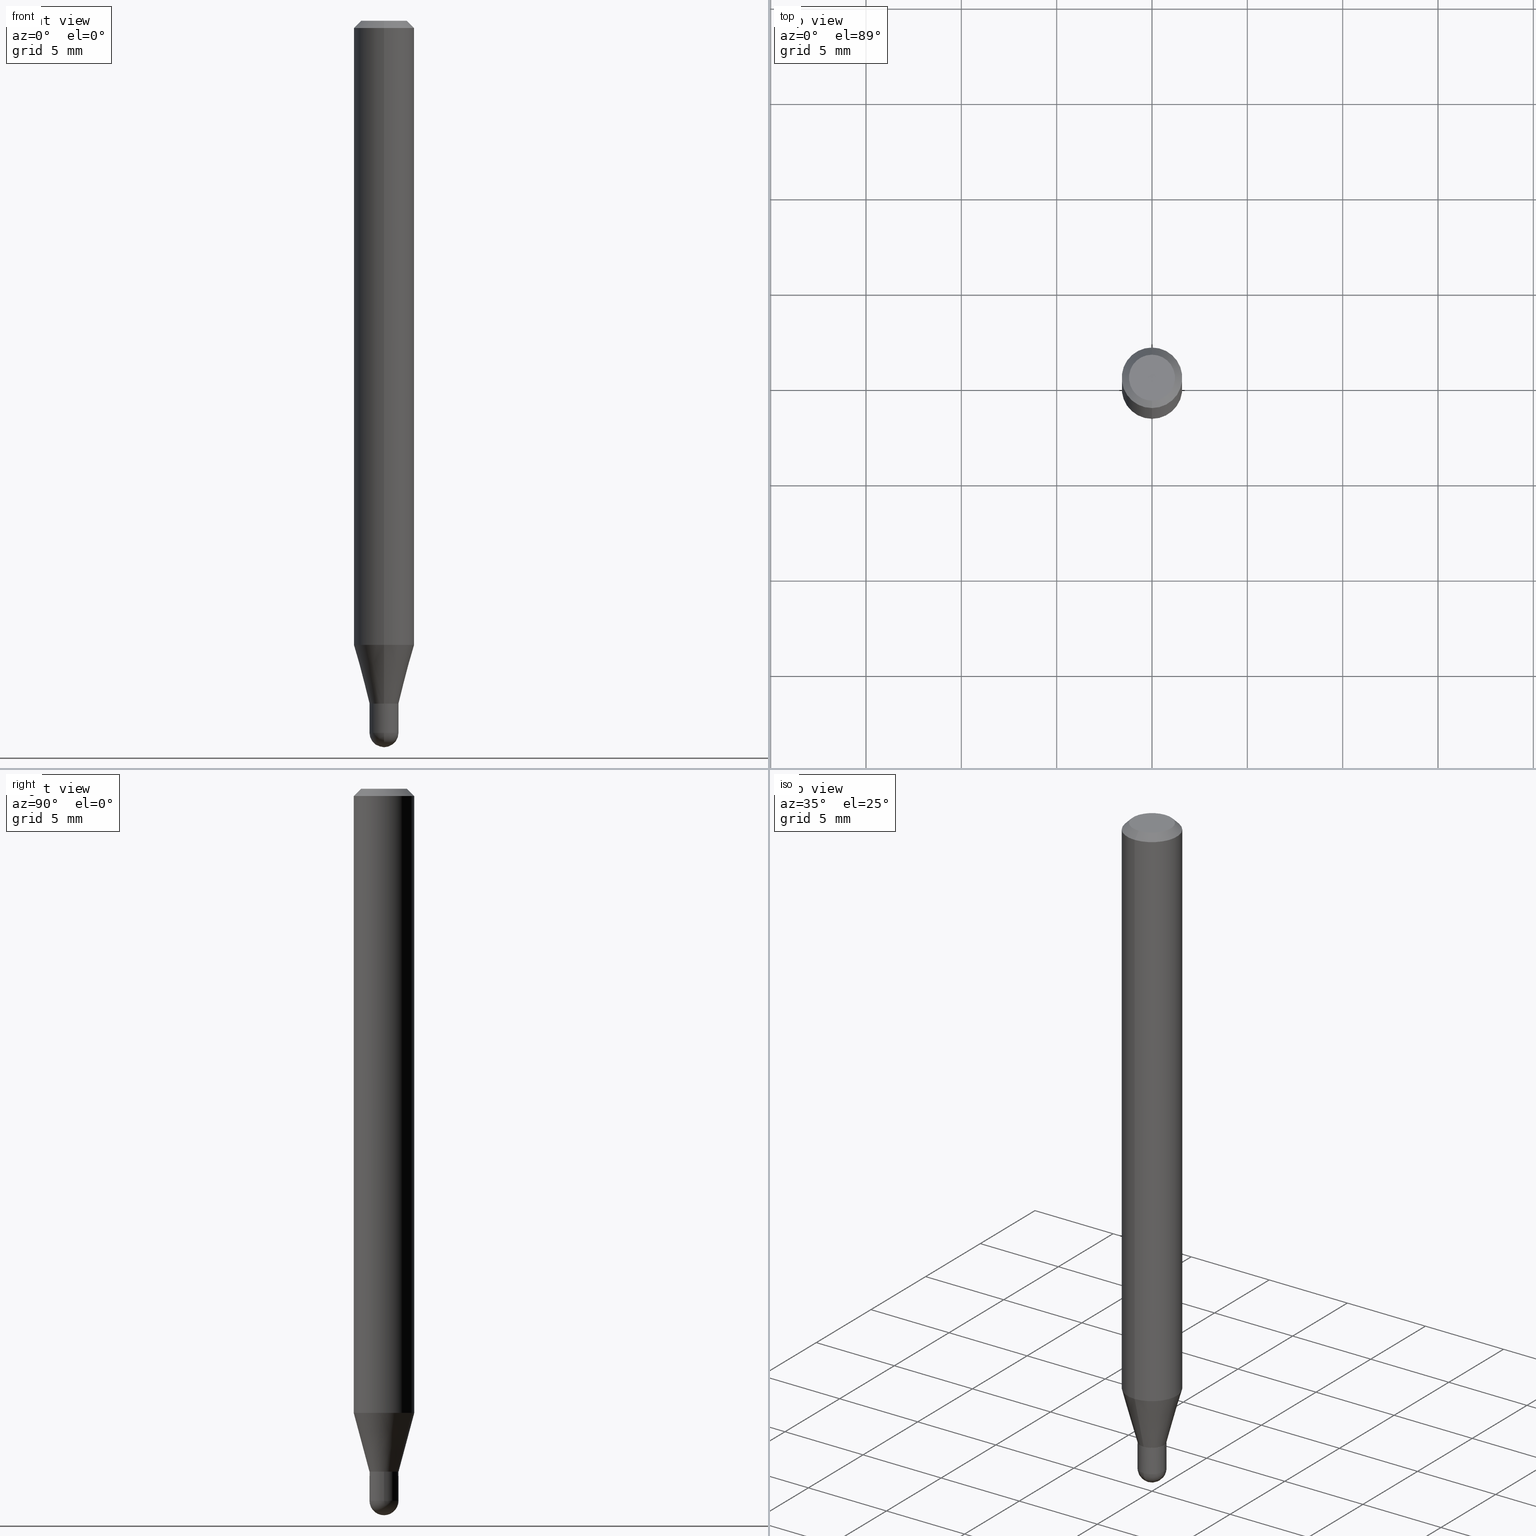
[diagram: canonical four-view strip — front | top / right | iso, engineering-drawing reading convention]
A machine part, canonical four-view strip (front | top / right | iso — engineering-drawing reading convention). The complete STEP part file that produces these views, byte-faithful:
ISO-10303-21;
HEADER;
FILE_DESCRIPTION (( 'STEP AP203' ),
    '1' );
FILE_NAME ('01417.STEP',
    '2024-03-07T20:35:59',
    ( '' ),
    ( '' ),
    'SwSTEP 2.0',
    'SolidWorks 2023',
    '' );
FILE_SCHEMA (( 'CONFIG_CONTROL_DESIGN' ));
ENDSEC;

DATA;
#1 = FACE_OUTER_BOUND ( 'NONE', #461, .T. ) ;
#2 = ORIENTED_EDGE ( 'NONE', *, *, #482, .F. ) ;
#3 = DIRECTION ( 'NONE',  ( -2.445461628991591881E-29, 3.491491616992802242E-15, 1.000000000000000000 ) ) ;
#4 = ORIENTED_EDGE ( 'NONE', *, *, #306, .T. ) ;
#5 = CARTESIAN_POINT ( 'NONE',  ( 4.364351673553919652E-16, 0.06249999999999995143, -0.01500000000000022669 ) ) ;
#6 = VECTOR ( 'NONE', #431, 39.37007874015747433 ) ;
#7 = AXIS2_PLACEMENT_3D ( 'NONE', #111, #181, #231 ) ;
#8 = DIRECTION ( 'NONE',  ( -6.982962677686265922E-15, -1.000000000000000000, 0.000000000000000000 ) ) ;
#9 = COORDINATED_UNIVERSAL_TIME_OFFSET ( 5, 0, .BEHIND. ) ;
#10 = VERTEX_POINT ( 'NONE', #187 ) ;
#11 = VERTEX_POINT ( 'NONE', #384 ) ;
#12 = EDGE_CURVE ( 'NONE', #10, #177, #489, .T. ) ;
#13 = CARTESIAN_POINT ( 'NONE',  ( 3.594839145092151380E-29, -5.132477568099425596E-15, -1.470000000000000417 ) ) ;
#14 = CARTESIAN_POINT ( 'NONE',  ( 0.000000000000000000, 0.000000000000000000, 0.000000000000000000 ) ) ;
#15 = ORIENTED_EDGE ( 'NONE', *, *, #348, .F. ) ;
#16 = APPROVAL ( #100, 'UNSPECIFIED' ) ;
#17 = VECTOR ( 'NONE', #243, 39.37007874015748143 ) ;
#18 = AXIS2_PLACEMENT_3D ( 'NONE', #476, #430, #228 ) ;
#19 = PERSON_AND_ORGANIZATION_ROLE ( 'creator' ) ;
#20 = ORIENTED_EDGE ( 'NONE', *, *, #226, .F. ) ;
#21 = CARTESIAN_POINT ( 'NONE',  ( 0.000000000000000000, 0.000000000000000000, 0.000000000000000000 ) ) ;
#22 = ORIENTED_EDGE ( 'NONE', *, *, #66, .F. ) ;
#23 = DIRECTION ( 'NONE',  ( 2.445461628991591881E-29, -3.491491616992802242E-15, -1.000000000000000000 ) ) ;
#24 = EDGE_CURVE ( 'NONE', #403, #201, #61, .T. ) ;
#25 = ORIENTED_EDGE ( 'NONE', *, *, #40, .F. ) ;
#26 = CYLINDRICAL_SURFACE ( 'NONE', #457, 0.06250000000000000000 ) ;
#27 = CARTESIAN_POINT ( 'NONE',  ( 3.594839145092151380E-29, -5.132477568099425596E-15, -1.470000000000000417 ) ) ;
#28 = ORIENTED_EDGE ( 'NONE', *, *, #226, .T. ) ;
#29 = EDGE_CURVE ( 'NONE', #177, #311, #116, .T. ) ;
#30 = DIRECTION ( 'NONE',  ( -2.445461628991591881E-29, 3.491491616992802242E-15, 1.000000000000000000 ) ) ;
#31 = AXIS2_PLACEMENT_3D ( 'NONE', #506, #308, #269 ) ;
#32 = CIRCLE ( 'NONE', #160, 0.03000000000000000583 ) ;
#33 = ORIENTED_EDGE ( 'NONE', *, *, #60, .T. ) ;
#34 = CARTESIAN_POINT ( 'NONE',  ( 3.448111016721043229E-29, -4.922988687768836490E-15, -1.410000000000000364 ) ) ;
#35 = VECTOR ( 'NONE', #256, 39.37007874015748143 ) ;
#36 = ORIENTED_EDGE ( 'NONE', *, *, #60, .F. ) ;
#37 = LINE ( 'NONE', #233, #456 ) ;
#38 = DIRECTION ( 'NONE',  ( -6.982962677686265922E-15, -1.000000000000000000, 0.000000000000000000 ) ) ;
#39 = ORIENTED_EDGE ( 'NONE', *, *, #92, .F. ) ;
#40 = EDGE_CURVE ( 'NONE', #284, #130, #509, .T. ) ;
#41 = CARTESIAN_POINT ( 'NONE',  ( 3.151486817839062472E-29, -4.499514396423286134E-15, -1.288708348754016741 ) ) ;
#42 = DATE_TIME_ROLE ( 'creation_date' ) ;
#43 = DIRECTION ( 'NONE',  ( -2.445461628991591881E-29, 3.491491616992802242E-15, 1.000000000000000000 ) ) ;
#44 =( NAMED_UNIT ( * ) PLANE_ANGLE_UNIT ( ) SI_UNIT ( $, .RADIAN. ) );
#45 = ORIENTED_EDGE ( 'NONE', *, *, #348, .T. ) ;
#46 = AXIS2_PLACEMENT_3D ( 'NONE', #161, #84, #90 ) ;
#47 = CYLINDRICAL_SURFACE ( 'NONE', #355, 0.03000000000000000583 ) ;
#48 = ORIENTED_EDGE ( 'NONE', *, *, #96, .F. ) ;
#49 = FACE_OUTER_BOUND ( 'NONE', #351, .T. ) ;
#50 = PERSON_AND_ORGANIZATION ( #104, #333 ) ;
#51 = CARTESIAN_POINT ( 'NONE',  ( 3.668192443487390344E-31, -5.237237425489206174E-17, -0.01500000000000000812 ) ) ;
#52 = PERSON_AND_ORGANIZATION_ROLE ( 'design_owner' ) ;
#53 = ORIENTED_EDGE ( 'NONE', *, *, #172, .T. ) ;
#54 = CARTESIAN_POINT ( 'NONE',  ( 2.166637767844679666E-46, -3.093402699027057757E-32, -8.859831379722413667E-18 ) ) ;
#55 = AXIS2_PLACEMENT_3D ( 'NONE', #353, #394, #292 ) ;
#56 = EDGE_CURVE ( 'NONE', #480, #454, #317, .T. ) ;
#57 = CARTESIAN_POINT ( 'NONE',  ( 2.131628207280632047E-16, 0.02999999999999489880, -1.409500000000000419 ) ) ;
#58 = EDGE_LOOP ( 'NONE', ( #458, #162, #447, #117 ) ) ;
#59 = CARTESIAN_POINT ( 'NONE',  ( 0.000000000000000000, 0.000000000000000000, 0.000000000000000000 ) ) ;
#60 = EDGE_CURVE ( 'NONE', #212, #244, #227, .T. ) ;
#61 = CIRCLE ( 'NONE', #303, 0.03000000000000000583 ) ;
#62 = DIRECTION ( 'NONE',  ( -2.445461628991591881E-29, 3.491491616992802242E-15, 1.000000000000000000 ) ) ;
#63 = AXIS2_PLACEMENT_3D ( 'NONE', #371, #176, #459 ) ;
#64 = CC_DESIGN_SECURITY_CLASSIFICATION ( #296, ( #498 ) ) ;
#65 = CALENDAR_DATE ( 2024, 7, 3 ) ;
#66 = EDGE_CURVE ( 'NONE', #454, #420, #443, .T. ) ;
#67 = DIRECTION ( 'NONE',  ( -2.445461628991591881E-29, 3.491491616992802242E-15, 1.000000000000000000 ) ) ;
#68 = VERTEX_POINT ( 'NONE', #82 ) ;
#69 = FACE_OUTER_BOUND ( 'NONE', #411, .T. ) ;
#70 = CARTESIAN_POINT ( 'NONE',  ( 2.166637767844679666E-46, -3.093402699027057757E-32, -8.859831379722413667E-18 ) ) ;
#71 = CARTESIAN_POINT ( 'NONE',  ( 4.440892098500942692E-16, 0.06249999999999995143, -0.01500000000000022669 ) ) ;
#72 = CLOSED_SHELL ( 'NONE', ( #398, #449, #236, #193, #404, #359, #324, #378, #151, #164, #221, #500 ) ) ;
#73 = AXIS2_PLACEMENT_3D ( 'NONE', #129, #356, #487 ) ;
#74 = AXIS2_PLACEMENT_3D ( 'NONE', #220, #67, #314 ) ;
#75 = EDGE_CURVE ( 'NONE', #323, #252, #392, .T. ) ;
#76 = ORIENTED_EDGE ( 'NONE', *, *, #29, .F. ) ;
#77 = LINE ( 'NONE', #396, #182 ) ;
#78 = VECTOR ( 'NONE', #88, 39.37007874015748143 ) ;
#79 = DIRECTION ( 'NONE',  ( -6.982962677686265922E-15, -1.000000000000000000, 3.491491616992802242E-15 ) ) ;
#80 = LOCAL_TIME ( 15, 35, 59.00000000000000000, #483 ) ;
#81 = CARTESIAN_POINT ( 'NONE',  ( -4.287811248607203282E-16, -0.06250000000000005551, -0.01499999999999979128 ) ) ;
#82 = CARTESIAN_POINT ( 'NONE',  ( -2.094888803305548889E-16, -0.03000000000000512326, -1.410000000000000586 ) ) ;
#83 = COORDINATED_UNIVERSAL_TIME_OFFSET ( 5, 0, .BEHIND. ) ;
#84 = DIRECTION ( 'NONE',  ( 1.000000000000000000, -6.982962677686265133E-15, 4.883557194083111780E-29 ) ) ;
#85 = ORIENTED_EDGE ( 'NONE', *, *, #336, .F. ) ;
#86 = CYLINDRICAL_SURFACE ( 'NONE', #18, 0.06250000000000000000 ) ;
#87 = AXIS2_PLACEMENT_3D ( 'NONE', #438, #43, #8 ) ;
#88 = DIRECTION ( 'NONE',  ( 5.024295867788190974E-15, 0.7071067811865681119, 0.7071067811865270336 ) ) ;
#89 = ORIENTED_EDGE ( 'NONE', *, *, #96, .T. ) ;
#90 = DIRECTION ( 'NONE',  ( -6.982962677686265133E-15, -1.000000000000000000, 0.000000000000000000 ) ) ;
#91 = CARTESIAN_POINT ( 'NONE',  ( -2.059973989917103533E-16, -0.02950000000000492159, -1.410000000000000364 ) ) ;
#92 = EDGE_CURVE ( 'NONE', #68, #212, #37, .T. ) ;
#93 = DIRECTION ( 'NONE',  ( -2.445461628991591881E-29, 3.491491616992802242E-15, 1.000000000000000000 ) ) ;
#94 = CALENDAR_DATE ( 2024, 7, 3 ) ;
#95 = APPROVAL_DATE_TIME ( #247, #279 ) ;
#96 = EDGE_CURVE ( 'NONE', #480, #313, #166, .T. ) ;
#97 = AXIS2_PLACEMENT_3D ( 'NONE', #41, #202, #322 ) ;
#98 = AXIS2_PLACEMENT_3D ( 'NONE', #146, #470, #38 ) ;
#99 = CARTESIAN_POINT ( 'NONE',  ( 2.113864638886639880E-16, 0.02949999999999507877, -1.410000000000000364 ) ) ;
#100 = APPROVAL_STATUS ( 'not_yet_approved' ) ;
#101 = CC_DESIGN_PERSON_AND_ORGANIZATION_ASSIGNMENT ( #402, #19, ( #260 ) ) ;
#102 = CARTESIAN_POINT ( 'NONE',  ( 3.448100896878145452E-29, -4.923003179959853236E-15, -1.410000000000000586 ) ) ;
#103 = ORIENTED_EDGE ( 'NONE', *, *, #184, .F. ) ;
#104 = PERSON ( 'UNSPECIFIED', 'UNSPECIFIED', 'UNSPECIFIED', ('UNSPECIFIED'), ('UNSPECIFIED'), ('UNSPECIFIED') ) ;
#105 = FACE_OUTER_BOUND ( 'NONE', #205, .T. ) ;
#106 = AXIS2_PLACEMENT_3D ( 'NONE', #70, #468, #383 ) ;
#107 = LINE ( 'NONE', #422, #230 ) ;
#108 = CONICAL_SURFACE ( 'NONE', #473, 0.03000000000000020012, 0.2617993877991577345 ) ;
#109 = DIRECTION ( 'NONE',  ( -2.445468806185136597E-29, 3.491481338843145583E-15, 1.000000000000000000 ) ) ;
#110 = APPROVAL ( #440, 'UNSPECIFIED' ) ;
#111 = CARTESIAN_POINT ( 'NONE',  ( 2.094888803306224597E-16, 0.02999999999999507921, -1.410000000000000364 ) ) ;
#112 = CARTESIAN_POINT ( 'NONE',  ( 3.594839145092151380E-29, -5.132477568099425596E-15, -1.470000000000000417 ) ) ;
#113 = DIRECTION ( 'NONE',  ( -6.982962677686265922E-15, -1.000000000000000000, 0.000000000000000000 ) ) ;
#114 = ORIENTED_EDGE ( 'NONE', *, *, #485, .F. ) ;
#115 = EDGE_CURVE ( 'NONE', #130, #284, #140, .T. ) ;
#116 = CIRCLE ( 'NONE', #354, 0.03000000000000000583 ) ;
#117 = ORIENTED_EDGE ( 'NONE', *, *, #306, .F. ) ;
#118 = APPROVAL_PERSON_ORGANIZATION ( #367, #279, #453 ) ;
#119 = ORIENTED_EDGE ( 'NONE', *, *, #184, .T. ) ;
#120 = CARTESIAN_POINT ( 'NONE',  ( 2.096101070492640071E-16, 0.02949999999999507877, -1.410000000000000364 ) ) ;
#121 = EDGE_CURVE ( 'NONE', #10, #403, #178, .T. ) ;
#122 = ORIENTED_EDGE ( 'NONE', *, *, #482, .T. ) ;
#123 = CARTESIAN_POINT ( 'NONE',  ( 0.03000000000000000583, -5.237222008264718177E-15, -1.470000000000000417 ) ) ;
#124 = AXIS2_PLACEMENT_3D ( 'NONE', #335, #62, #143 ) ;
#125 = APPROVAL_PERSON_ORGANIZATION ( #298, #16, #407 ) ;
#126 = EDGE_LOOP ( 'NONE', ( #444, #235, #15, #157 ) ) ;
#127 = CARTESIAN_POINT ( 'NONE',  ( -4.364351673553602629E-16, -0.06250000000000452416, -1.288708348754016519 ) ) ;
#128 = ORIENTED_EDGE ( 'NONE', *, *, #289, .T. ) ;
#129 = CARTESIAN_POINT ( 'NONE',  ( 3.446878166063650219E-29, -4.921257434151356345E-15, -1.409500000000000419 ) ) ;
#130 = VERTEX_POINT ( 'NONE', #318 ) ;
#131 = DIRECTION ( 'NONE',  ( -2.445461628991591601E-29, 3.491491616992802242E-15, 1.000000000000000000 ) ) ;
#132 = AXIS2_PLACEMENT_3D ( 'NONE', #328, #23, #491 ) ;
#133 = ORIENTED_EDGE ( 'NONE', *, *, #56, .F. ) ;
#134 = FACE_OUTER_BOUND ( 'NONE', #154, .T. ) ;
#135 = LINE ( 'NONE', #288, #35 ) ;
#136 = ADVANCED_FACE ( 'NONE', ( #199 ), #47, .T. ) ;
#137 = CYLINDRICAL_SURFACE ( 'NONE', #200, 0.03000000000000000583 ) ;
#138 = EDGE_CURVE ( 'NONE', #212, #313, #77, .T. ) ;
#139 = ORIENTED_EDGE ( 'NONE', *, *, #330, .F. ) ;
#140 = CIRCLE ( 'NONE', #390, 0.02999999999999999889 ) ;
#141 = DIRECTION ( 'NONE',  ( 1.000000000000000000, -6.982962677686266711E-15, 4.876176775795935793E-29 ) ) ;
#142 = ORIENTED_EDGE ( 'NONE', *, *, #75, .F. ) ;
#143 = DIRECTION ( 'NONE',  ( -6.982962677686265922E-15, -1.000000000000000000, 0.000000000000000000 ) ) ;
#144 = PERSON_AND_ORGANIZATION_ROLE ( 'design_supplier' ) ;
#145 = EDGE_CURVE ( 'NONE', #150, #252, #309, .T. ) ;
#146 = CARTESIAN_POINT ( 'NONE',  ( 3.448100896878145452E-29, -4.923003179959853236E-15, -1.410000000000000586 ) ) ;
#147 = DATE_TIME_ROLE ( 'classification_date' ) ;
#148 = CONICAL_SURFACE ( 'NONE', #132, 0.06250000000000000000, 0.7853981633974483900 ) ;
#149 = EDGE_LOOP ( 'NONE', ( #185, #248, #36, #39 ) ) ;
#150 = VERTEX_POINT ( 'NONE', #270 ) ;
#151 = ADVANCED_FACE ( 'NONE', ( #49 ), #240, .F. ) ;
#152 = CIRCLE ( 'NONE', #365, 0.06250000000000000000 ) ;
#153 = DIRECTION ( 'NONE',  ( -2.445461628991591881E-29, 3.491491616992802242E-15, 1.000000000000000000 ) ) ;
#154 = EDGE_LOOP ( 'NONE', ( #239, #119, #477, #504, #25 ) ) ;
#155 = DIRECTION ( 'NONE',  ( -4.851104656540964275E-15, -0.7071067811865500152, -0.7071067811865450192 ) ) ;
#156 = LINE ( 'NONE', #417, #505 ) ;
#157 = ORIENTED_EDGE ( 'NONE', *, *, #24, .F. ) ;
#158 = CARTESIAN_POINT ( 'NONE',  ( 3.448100896878144891E-29, -4.923003179959852447E-15, -1.410000000000000364 ) ) ;
#159 = VECTOR ( 'NONE', #155, 39.37007874015748143 ) ;
#160 = AXIS2_PLACEMENT_3D ( 'NONE', #27, #180, #496 ) ;
#161 = CARTESIAN_POINT ( 'NONE',  ( 3.592273646224612654E-29, -5.136151508496865947E-15, -1.470000000000000195 ) ) ;
#162 = ORIENTED_EDGE ( 'NONE', *, *, #75, .T. ) ;
#163 = DIRECTION ( 'NONE',  ( 6.982962677686265922E-15, 1.000000000000000000, -3.491491616992802242E-15 ) ) ;
#164 = ADVANCED_FACE ( 'NONE', ( #445 ), #478, .F. ) ;
#165 = ORIENTED_EDGE ( 'NONE', *, *, #66, .T. ) ;
#166 = LINE ( 'NONE', #81, #159 ) ;
#167 = CC_DESIGN_DATE_AND_TIME_ASSIGNMENT ( #494, #42, ( #260 ) ) ;
#168 = ORIENTED_EDGE ( 'NONE', *, *, #29, .T. ) ;
#169 = DIRECTION ( 'NONE',  ( -2.445468806185136597E-29, 3.491481338843145583E-15, 1.000000000000000000 ) ) ;
#170 = AXIS2_PLACEMENT_3D ( 'NONE', #493, #173, #175 ) ;
#171 =( GEOMETRIC_REPRESENTATION_CONTEXT ( 3 ) GLOBAL_UNCERTAINTY_ASSIGNED_CONTEXT ( ( #183 ) ) GLOBAL_UNIT_ASSIGNED_CONTEXT ( ( #278, #44, #210 ) ) REPRESENTATION_CONTEXT ( 'NONE', 'WORKASPACE' ) );
#172 = EDGE_CURVE ( 'NONE', #420, #313, #152, .T. ) ;
#173 = DIRECTION ( 'NONE',  ( -2.445461628991591881E-29, 3.491491616992802242E-15, 1.000000000000000000 ) ) ;
#174 = CALENDAR_DATE ( 2024, 7, 3 ) ;
#175 = DIRECTION ( 'NONE',  ( -6.982962677686265922E-15, -1.000000000000000000, 4.370956789862821150E-15 ) ) ;
#176 = DIRECTION ( 'NONE',  ( -2.445461628991591881E-29, 3.491491616992802242E-15, 1.000000000000000000 ) ) ;
#177 = VERTEX_POINT ( 'NONE', #349 ) ;
#178 = CIRCLE ( 'NONE', #189, 0.03000000000000011685 ) ;
#179 = CIRCLE ( 'NONE', #224, 0.04749999999999999362 ) ;
#180 = DIRECTION ( 'NONE',  ( -2.445468806185136597E-29, 3.491481338843145583E-15, 1.000000000000000000 ) ) ;
#181 = DIRECTION ( 'NONE',  ( 2.438088387897960049E-29, -3.491481338843145188E-15, -1.000000000000000000 ) ) ;
#182 = VECTOR ( 'NONE', #131, 39.37007874015748143 ) ;
#183 = UNCERTAINTY_MEASURE_WITH_UNIT (LENGTH_MEASURE( 1.000000000000000082E-05 ), #278, 'distance_accuracy_value', 'NONE');
#184 = EDGE_CURVE ( 'NONE', #311, #403, #251, .T. ) ;
#185 = ORIENTED_EDGE ( 'NONE', *, *, #421, .T. ) ;
#186 = DATE_AND_TIME ( #65, #366 ) ;
#187 = CARTESIAN_POINT ( 'NONE',  ( 3.664354960976397927E-29, -5.242732918860881858E-15, -1.500000000000000444 ) ) ;
#188 = ORIENTED_EDGE ( 'NONE', *, *, #92, .T. ) ;
#189 = AXIS2_PLACEMENT_3D ( 'NONE', #358, #272, #197 ) ;
#190 = PERSON_AND_ORGANIZATION_ROLE ( 'classification_officer' ) ;
#191 = APPROVAL_PERSON_ORGANIZATION ( #198, #110, #377 ) ;
#192 = DIRECTION ( 'NONE',  ( -2.445461628991591601E-29, 3.491491616992802242E-15, 1.000000000000000000 ) ) ;
#193 = ADVANCED_FACE ( 'NONE', ( #1 ), #86, .T. ) ;
#194 = DIRECTION ( 'NONE',  ( -2.445461628991591881E-29, 3.491491616992802242E-15, 1.000000000000000000 ) ) ;
#195 = DIRECTION ( 'NONE',  ( -2.445461628991591881E-29, 3.491491616992802242E-15, 1.000000000000000000 ) ) ;
#196 = ORIENTED_EDGE ( 'NONE', *, *, #172, .F. ) ;
#197 = DIRECTION ( 'NONE',  ( -6.982962677686265133E-15, -1.000000000000000000, 0.000000000000000000 ) ) ;
#198 = PERSON_AND_ORGANIZATION ( #104, #333 ) ;
#199 = FACE_OUTER_BOUND ( 'NONE', #290, .T. ) ;
#200 = AXIS2_PLACEMENT_3D ( 'NONE', #219, #463, #141 ) ;
#201 = VERTEX_POINT ( 'NONE', #123 ) ;
#202 = DIRECTION ( 'NONE',  ( -2.445461628991591881E-29, 3.491491616992802242E-15, 1.000000000000000000 ) ) ;
#203 = APPROVAL_DATE_TIME ( #186, #110 ) ;
#204 = LENGTH_MEASURE_WITH_UNIT ( LENGTH_MEASURE( 0.02539999999999999897 ), #207 );
#205 = EDGE_LOOP ( 'NONE', ( #48, #139, #165, #53 ) ) ;
#206 = DIRECTION ( 'NONE',  ( -6.982962677686265922E-15, -1.000000000000000000, 3.483106191921935554E-15 ) ) ;
#207 =( LENGTH_UNIT ( ) NAMED_UNIT ( * ) SI_UNIT ( $, .METRE. ) );
#208 = ORIENTED_EDGE ( 'NONE', *, *, #421, .F. ) ;
#209 = DIRECTION ( 'NONE',  ( 6.982962677686265922E-15, 1.000000000000000000, -3.483106191921935554E-15 ) ) ;
#210 =( NAMED_UNIT ( * ) SI_UNIT ( $, .STERADIAN. ) SOLID_ANGLE_UNIT ( ) );
#211 = CIRCLE ( 'NONE', #63, 0.02949999999999999845 ) ;
#212 = VERTEX_POINT ( 'NONE', #127 ) ;
#213 = FACE_OUTER_BOUND ( 'NONE', #305, .T. ) ;
#214 = SHAPE_DEFINITION_REPRESENTATION ( #464, #428 ) ;
#215 = DIRECTION ( 'NONE',  ( -2.445461628991591881E-29, 3.491491616992802242E-15, 1.000000000000000000 ) ) ;
#216 = ORIENTED_EDGE ( 'NONE', *, *, #472, .F. ) ;
#217 = DIRECTION ( 'NONE',  ( -2.445468806185136877E-29, 3.491481338843145188E-15, 1.000000000000000000 ) ) ;
#218 = CC_DESIGN_APPROVAL ( #279, ( #260 ) ) ;
#219 = CARTESIAN_POINT ( 'NONE',  ( 0.000000000000000000, 0.000000000000000000, 0.000000000000000000 ) ) ;
#220 = CARTESIAN_POINT ( 'NONE',  ( 3.668192443487390344E-31, -5.237237425489206174E-17, -0.01500000000000000812 ) ) ;
#221 = ADVANCED_FACE ( 'NONE', ( #277 ), #490, .T. ) ;
#222 = CC_DESIGN_PERSON_AND_ORGANIZATION_ASSIGNMENT ( #50, #52, ( #258 ) ) ;
#223 = DIRECTION ( 'NONE',  ( -6.982962677686265922E-15, -1.000000000000000000, 0.000000000000000000 ) ) ;
#224 = AXIS2_PLACEMENT_3D ( 'NONE', #54, #215, #332 ) ;
#225 = DIRECTION ( 'NONE',  ( -2.445468806185136597E-29, 3.491481338843145583E-15, 1.000000000000000000 ) ) ;
#226 = EDGE_CURVE ( 'NONE', #244, #212, #433, .T. ) ;
#227 = CIRCLE ( 'NONE', #97, 0.06250000000000000000 ) ;
#228 = DIRECTION ( 'NONE',  ( -6.982962677686265922E-15, -1.000000000000000000, 3.491491616992801848E-15 ) ) ;
#229 = CONICAL_SURFACE ( 'NONE', #261, 0.03000000000000020012, 0.2617993877991577345 ) ;
#230 = VECTOR ( 'NONE', #338, 39.37007874015748143 ) ;
#231 = DIRECTION ( 'NONE',  ( -1.000000000000000000, 6.982962677686265922E-15, -4.876176775795935793E-29 ) ) ;
#232 = ORIENTED_EDGE ( 'NONE', *, *, #138, .F. ) ;
#233 = CARTESIAN_POINT ( 'NONE',  ( -2.094888803305548889E-16, -0.03000000000000512326, -1.410000000000000586 ) ) ;
#234 = LINE ( 'NONE', #466, #6 ) ;
#235 = ORIENTED_EDGE ( 'NONE', *, *, #12, .T. ) ;
#236 = ADVANCED_FACE ( 'NONE', ( #301 ), #148, .T. ) ;
#237 = DIRECTION ( 'NONE',  ( -2.445468806185136597E-29, 3.491481338843145583E-15, 1.000000000000000000 ) ) ;
#238 = APPLICATION_PROTOCOL_DEFINITION ( 'international standard', 'config_control_design', 1994, #416 ) ;
#239 = ORIENTED_EDGE ( 'NONE', *, *, #289, .F. ) ;
#240 = PLANE ( 'NONE',  #375 ) ;
#241 = CIRCLE ( 'NONE', #273, 0.02999999999999992256 ) ;
#242 = ORIENTED_EDGE ( 'NONE', *, *, #469, .F. ) ;
#243 = DIRECTION ( 'NONE',  ( 4.937700262164548042E-15, 0.7071067811865451302, -0.7071067811865499042 ) ) ;
#244 = VERTEX_POINT ( 'NONE', #374 ) ;
#245 = FACE_OUTER_BOUND ( 'NONE', #441, .T. ) ;
#246 = APPLICATION_CONTEXT ( 'configuration controlled 3d designs of mechanical parts and assemblies' ) ;
#247 = DATE_AND_TIME ( #492, #310 ) ;
#248 = ORIENTED_EDGE ( 'NONE', *, *, #452, .T. ) ;
#249 = DIRECTION ( 'NONE',  ( -2.445461628991591881E-29, 3.491491616992802242E-15, 1.000000000000000000 ) ) ;
#250 = APPLICATION_PROTOCOL_DEFINITION ( 'international standard', 'config_control_design', 1994, #246 ) ;
#251 = CIRCLE ( 'NONE', #381, 0.03000000000000000583 ) ;
#252 = VERTEX_POINT ( 'NONE', #57 ) ;
#253 = LOCAL_TIME ( 15, 35, 59.00000000000000000, #465 ) ;
#254 = DIRECTION ( 'NONE',  ( -6.982962677686265133E-15, -1.000000000000000000, 0.000000000000000000 ) ) ;
#255 = MANIFOLD_SOLID_BREP ( 'Body-Move/Copy2[1]', #325 ) ;
#256 = DIRECTION ( 'NONE',  ( -2.445468806185136877E-29, 3.491481338843145188E-15, 1.000000000000000000 ) ) ;
#257 = ORIENTED_EDGE ( 'NONE', *, *, #336, .T. ) ;
#258 = PRODUCT ( '01417', '01417', '', ( #399 ) ) ;
#259 = DIRECTION ( 'NONE',  ( 2.445461628991591881E-29, -3.491491616992802242E-15, -1.000000000000000000 ) ) ;
#260 = PRODUCT_DEFINITION ( 'UNKNOWN', '', #498, #397 ) ;
#261 = AXIS2_PLACEMENT_3D ( 'NONE', #102, #249, #448 ) ;
#262 = CARTESIAN_POINT ( 'NONE',  ( 3.448100896878145452E-29, -4.923003179959853236E-15, -1.410000000000000586 ) ) ;
#263 = DIRECTION ( 'NONE',  ( 1.000000000000000000, -6.982962677686268288E-15, 0.000000000000000000 ) ) ;
#264 = DIRECTION ( 'NONE',  ( -2.445461628991591881E-29, 3.491491616992802242E-15, 1.000000000000000000 ) ) ;
#265 = FACE_OUTER_BOUND ( 'NONE', #58, .T. ) ;
#266 = CARTESIAN_POINT ( 'NONE',  ( 3.594839145092151380E-29, -5.132477568099425596E-15, -1.470000000000000417 ) ) ;
#267 = AXIS2_PLACEMENT_3D ( 'NONE', #51, #259, #209 ) ;
#268 = AXIS2_PLACEMENT_3D ( 'NONE', #14, #283, #320 ) ;
#269 = DIRECTION ( 'NONE',  ( 7.105427357601000281E-15, 1.000000000000000000, 0.000000000000000000 ) ) ;
#270 = CARTESIAN_POINT ( 'NONE',  ( -2.094888803305537056E-16, -0.03000000000000494632, -1.409500000000000419 ) ) ;
#271 = ORIENTED_EDGE ( 'NONE', *, *, #469, .T. ) ;
#272 = DIRECTION ( 'NONE',  ( -1.000000000000000000, 6.982962677686265922E-15, -4.883557194083112340E-29 ) ) ;
#273 = AXIS2_PLACEMENT_3D ( 'NONE', #276, #195, #113 ) ;
#274 = CIRCLE ( 'NONE', #74, 0.06250000000000000000 ) ;
#275 = ADVANCED_FACE ( 'NONE', ( #134 ), #137, .T. ) ;
#276 = CARTESIAN_POINT ( 'NONE',  ( 3.446878166063650219E-29, -4.921257434151356345E-15, -1.409500000000000419 ) ) ;
#277 = FACE_OUTER_BOUND ( 'NONE', #437, .T. ) ;
#278 =( CONVERSION_BASED_UNIT ( 'INCH', #204 ) LENGTH_UNIT ( ) NAMED_UNIT ( #439 ) );
#279 = APPROVAL ( #357, 'UNSPECIFIED' ) ;
#280 = EDGE_LOOP ( 'NONE', ( #114, #28, #475, #196 ) ) ;
#281 = DIRECTION ( 'NONE',  ( -2.445468806185136597E-29, 3.491481338843145583E-15, 1.000000000000000000 ) ) ;
#282 = EDGE_LOOP ( 'NONE', ( #395, #271, #188, #20 ) ) ;
#283 = DIRECTION ( 'NONE',  ( 0.000000000000000000, 0.000000000000000000, 1.000000000000000000 ) ) ;
#284 = VERTEX_POINT ( 'NONE', #455 ) ;
#285 = ADVANCED_FACE ( 'NONE', ( #245 ), #297, .T. ) ;
#286 = CARTESIAN_POINT ( 'NONE',  ( 3.316907271900976096E-16, 0.04749999999999999362, -1.702757674970192899E-16 ) ) ;
#287 = LOCAL_TIME ( 15, 35, 59.00000000000000000, #83 ) ;
#288 = CARTESIAN_POINT ( 'NONE',  ( -0.03000000000000000583, 2.131628207280300972E-16, -1.475680527076471882E-30 ) ) ;
#289 = EDGE_CURVE ( 'NONE', #311, #284, #135, .T. ) ;
#290 = EDGE_LOOP ( 'NONE', ( #168, #128, #363, #486, #45 ) ) ;
#291 = CARTESIAN_POINT ( 'NONE',  ( -4.364351673553912750E-16, -0.06250000000000005551, -0.01499999999999979128 ) ) ;
#292 = DIRECTION ( 'NONE',  ( -6.982962677686265922E-15, -1.000000000000000000, 3.491491616992802242E-15 ) ) ;
#293 = EDGE_LOOP ( 'NONE', ( #133, #89, #122, #22 ) ) ;
#294 = DIRECTION ( 'NONE',  ( 1.000000000000000000, -6.982962677686265133E-15, 4.883557194083111780E-29 ) ) ;
#295 = AXIS2_PLACEMENT_3D ( 'NONE', #302, #264, #347 ) ;
#296 = SECURITY_CLASSIFICATION ( '', '', #436 ) ;
#297 = SPHERICAL_SURFACE ( 'NONE', #408, 0.03000000000000011685 ) ;
#298 = PERSON_AND_ORGANIZATION ( #104, #333 ) ;
#299 = ORIENTED_EDGE ( 'NONE', *, *, #485, .T. ) ;
#300 = PRODUCT_RELATED_PRODUCT_CATEGORY ( 'detail', '', ( #258 ) ) ;
#301 = FACE_OUTER_BOUND ( 'NONE', #293, .T. ) ;
#302 = CARTESIAN_POINT ( 'NONE',  ( 3.448100896878144891E-29, -4.923003179959852447E-15, -1.410000000000000364 ) ) ;
#303 = AXIS2_PLACEMENT_3D ( 'NONE', #112, #418, #429 ) ;
#304 = DIRECTION ( 'NONE',  ( -2.445461628991591601E-29, 3.491491616992802242E-15, 1.000000000000000000 ) ) ;
#305 = EDGE_LOOP ( 'NONE', ( #242, #316, #471, #216 ) ) ;
#306 = EDGE_CURVE ( 'NONE', #360, #150, #495, .T. ) ;
#307 = EDGE_LOOP ( 'NONE', ( #499, #511 ) ) ;
#308 = DIRECTION ( 'NONE',  ( 1.000000000000000000, -7.105427357601001070E-15, 4.926315508542082329E-29 ) ) ;
#309 = CIRCLE ( 'NONE', #73, 0.02999999999999992256 ) ;
#310 = LOCAL_TIME ( 15, 35, 59.00000000000000000, #362 ) ;
#311 = VERTEX_POINT ( 'NONE', #413 ) ;
#312 = CC_DESIGN_DATE_AND_TIME_ASSIGNMENT ( #373, #147, ( #296 ) ) ;
#313 = VERTEX_POINT ( 'NONE', #291 ) ;
#314 = DIRECTION ( 'NONE',  ( -6.982962677686265922E-15, -1.000000000000000000, 3.483106191921935554E-15 ) ) ;
#315 = DIRECTION ( 'NONE',  ( 1.000000000000000000, -6.982962677686266711E-15, 4.876176775795935793E-29 ) ) ;
#316 = ORIENTED_EDGE ( 'NONE', *, *, #462, .T. ) ;
#317 = CIRCLE ( 'NONE', #106, 0.04749999999999999362 ) ;
#318 = CARTESIAN_POINT ( 'NONE',  ( 0.02999999999999999889, -5.132477568099424807E-15, -1.410000000000000364 ) ) ;
#319 = CIRCLE ( 'NONE', #124, 0.02949999999999999845 ) ;
#320 = DIRECTION ( 'NONE',  ( 1.000000000000000000, 0.000000000000000000, 0.000000000000000000 ) ) ;
#321 = DIRECTION ( 'NONE',  ( 1.000000000000000000, -6.982962677686266711E-15, 0.000000000000000000 ) ) ;
#322 = DIRECTION ( 'NONE',  ( -6.982962677686265922E-15, -1.000000000000000000, 4.370956789862821150E-15 ) ) ;
#323 = VERTEX_POINT ( 'NONE', #99 ) ;
#324 = ADVANCED_FACE ( 'NONE', ( #451 ), #26, .T. ) ;
#325 = CLOSED_SHELL ( 'NONE', ( #136, #507, #442, #285, #275 ) ) ;
#326 = CONICAL_SURFACE ( 'NONE', #267, 0.06250000000000000000, 0.7853981633974483900 ) ;
#327 = PERSON_AND_ORGANIZATION ( #104, #333 ) ;
#328 = CARTESIAN_POINT ( 'NONE',  ( 3.668192443487390344E-31, -5.237237425489206174E-17, -0.01500000000000000812 ) ) ;
#329 = CALENDAR_DATE ( 2024, 7, 3 ) ;
#330 = EDGE_CURVE ( 'NONE', #454, #480, #179, .T. ) ;
#331 = ORIENTED_EDGE ( 'NONE', *, *, #372, .F. ) ;
#332 = DIRECTION ( 'NONE',  ( -6.982962677686266711E-15, -1.000000000000000000, 3.491491616992802242E-15 ) ) ;
#333 = ORGANIZATION ( 'UNSPECIFIED', 'UNSPECIFIED', '' ) ;
#334 = ORIENTED_EDGE ( 'NONE', *, *, #145, .T. ) ;
#335 = CARTESIAN_POINT ( 'NONE',  ( 3.448100896878144891E-29, -4.923003179959852447E-15, -1.410000000000000364 ) ) ;
#336 = EDGE_CURVE ( 'NONE', #323, #360, #211, .T. ) ;
#337 = PERSON_AND_ORGANIZATION ( #104, #333 ) ;
#338 = DIRECTION ( 'NONE',  ( -2.445461628991591601E-29, 3.491491616992802242E-15, 1.000000000000000000 ) ) ;
#339 = ORIENTED_EDGE ( 'NONE', *, *, #330, .T. ) ;
#340 = VECTOR ( 'NONE', #217, 39.37007874015748143 ) ;
#341 = CC_DESIGN_APPROVAL ( #110, ( #498 ) ) ;
#342 = PLANE ( 'NONE',  #7 ) ;
#343 = ORIENTED_EDGE ( 'NONE', *, *, #12, .F. ) ;
#344 = CC_DESIGN_PERSON_AND_ORGANIZATION_ASSIGNMENT ( #337, #190, ( #296 ) ) ;
#345 = AXIS2_PLACEMENT_3D ( 'NONE', #34, #109, #263 ) ;
#346 = CIRCLE ( 'NONE', #98, 0.03000000000000020012 ) ;
#347 = DIRECTION ( 'NONE',  ( -6.982962677686265922E-15, -1.000000000000000000, 0.000000000000000000 ) ) ;
#348 = EDGE_CURVE ( 'NONE', #201, #177, #32, .T. ) ;
#349 = CARTESIAN_POINT ( 'NONE',  ( 2.131628207280663601E-16, 0.02999999999999492656, -1.470000000000000417 ) ) ;
#350 = CARTESIAN_POINT ( 'NONE',  ( 3.840629472727447874E-16, 0.04749999999999999362, -1.747056831868805136E-16 ) ) ;
#351 = EDGE_LOOP ( 'NONE', ( #339, #368 ) ) ;
#352 = DIRECTION ( 'NONE',  ( -6.982962677686265922E-15, -1.000000000000000000, 3.491491616992802242E-15 ) ) ;
#353 = CARTESIAN_POINT ( 'NONE',  ( 0.000000000000000000, 0.000000000000000000, 0.000000000000000000 ) ) ;
#354 = AXIS2_PLACEMENT_3D ( 'NONE', #266, #225, #423 ) ;
#355 = AXIS2_PLACEMENT_3D ( 'NONE', #434, #281, #315 ) ;
#356 = DIRECTION ( 'NONE',  ( -2.445461628991591881E-29, 3.491491616992802242E-15, 1.000000000000000000 ) ) ;
#357 = APPROVAL_STATUS ( 'not_yet_approved' ) ;
#358 = CARTESIAN_POINT ( 'NONE',  ( 3.592273646224612654E-29, -5.136151508496865947E-15, -1.470000000000000195 ) ) ;
#359 = ADVANCED_FACE ( 'NONE', ( #501 ), #229, .T. ) ;
#360 = VERTEX_POINT ( 'NONE', #91 ) ;
#361 = CARTESIAN_POINT ( 'NONE',  ( 3.668192443487390344E-31, -5.237237425489206174E-17, -0.01500000000000000812 ) ) ;
#362 = COORDINATED_UNIVERSAL_TIME_OFFSET ( 5, 0, .BEHIND. ) ;
#363 = ORIENTED_EDGE ( 'NONE', *, *, #115, .F. ) ;
#364 = CARTESIAN_POINT ( 'NONE',  ( 3.592273646224612654E-29, -5.136151508496865947E-15, -1.470000000000000195 ) ) ;
#365 = AXIS2_PLACEMENT_3D ( 'NONE', #361, #194, #206 ) ;
#366 = LOCAL_TIME ( 15, 35, 59.00000000000000000, #9 ) ;
#367 = PERSON_AND_ORGANIZATION ( #104, #333 ) ;
#368 = ORIENTED_EDGE ( 'NONE', *, *, #56, .T. ) ;
#369 = EDGE_CURVE ( 'NONE', #201, #130, #405, .T. ) ;
#370 = CYLINDRICAL_SURFACE ( 'NONE', #391, 0.03000000000000006481 ) ;
#371 = CARTESIAN_POINT ( 'NONE',  ( 3.448100896878144891E-29, -4.923003179959852447E-15, -1.410000000000000364 ) ) ;
#372 = EDGE_CURVE ( 'NONE', #360, #323, #319, .T. ) ;
#373 = DATE_AND_TIME ( #94, #287 ) ;
#374 = CARTESIAN_POINT ( 'NONE',  ( 4.440892098500938748E-16, 0.06249999999999547584, -1.288708348754017186 ) ) ;
#375 = AXIS2_PLACEMENT_3D ( 'NONE', #286, #481, #163 ) ;
#376 = DIRECTION ( 'NONE',  ( -6.982962677686265922E-15, -1.000000000000000000, 3.491491616992801848E-15 ) ) ;
#377 = APPROVAL_ROLE ( '' ) ;
#378 = ADVANCED_FACE ( 'NONE', ( #105 ), #326, .T. ) ;
#379 = LINE ( 'NONE', #503, #474 ) ;
#380 = CYLINDRICAL_SURFACE ( 'NONE', #55, 0.03000000000000006481 ) ;
#381 = AXIS2_PLACEMENT_3D ( 'NONE', #13, #169, #321 ) ;
#382 = AXIS2_PLACEMENT_3D ( 'NONE', #262, #3, #223 ) ;
#383 = DIRECTION ( 'NONE',  ( -6.982962677686266711E-15, -1.000000000000000000, 3.491491616992802242E-15 ) ) ;
#384 = CARTESIAN_POINT ( 'NONE',  ( 3.286260152890800558E-16, 0.02999999999999528044, -1.410000000000000586 ) ) ;
#385 = CARTESIAN_POINT ( 'NONE',  ( -2.094888803305524730E-16, -0.03000000000000519612, -1.470000000000000417 ) ) ;
#386 = ORIENTED_EDGE ( 'NONE', *, *, #462, .F. ) ;
#387 = DIRECTION ( 'NONE',  ( 1.000000000000000000, -6.982962677686268288E-15, 0.000000000000000000 ) ) ;
#388 = CARTESIAN_POINT ( 'NONE',  ( 3.448111016721043229E-29, -4.922988687768836490E-15, -1.410000000000000364 ) ) ;
#389 = DIRECTION ( 'NONE',  ( -2.445461628991591601E-29, 3.491491616992802242E-15, 1.000000000000000000 ) ) ;
#390 = AXIS2_PLACEMENT_3D ( 'NONE', #388, #237, #387 ) ;
#391 = AXIS2_PLACEMENT_3D ( 'NONE', #21, #153, #79 ) ;
#392 = LINE ( 'NONE', #120, #78 ) ;
#393 = CC_DESIGN_APPROVAL ( #16, ( #296 ) ) ;
#394 = DIRECTION ( 'NONE',  ( -2.445461628991591881E-29, 3.491491616992802242E-15, 1.000000000000000000 ) ) ;
#395 = ORIENTED_EDGE ( 'NONE', *, *, #452, .F. ) ;
#396 = CARTESIAN_POINT ( 'NONE',  ( -4.364351673553916201E-16, -0.06250000000000000000, 2.182182260620501155E-16 ) ) ;
#397 = DESIGN_CONTEXT ( 'detailed design', #246, 'design' ) ;
#398 = ADVANCED_FACE ( 'NONE', ( #213 ), #370, .F. ) ;
#399 = MECHANICAL_CONTEXT ( 'NONE', #416, 'mechanical' ) ;
#400 = ORIENTED_EDGE ( 'NONE', *, *, #121, .T. ) ;
#401 = CARTESIAN_POINT ( 'NONE',  ( 0.03000000000000000583, -2.094888803305880457E-16, 1.462853032738781053E-30 ) ) ;
#402 = PERSON_AND_ORGANIZATION ( #104, #333 ) ;
#403 = VERTEX_POINT ( 'NONE', #385 ) ;
#404 = ADVANCED_FACE ( 'NONE', ( #502 ), #108, .T. ) ;
#405 = LINE ( 'NONE', #401, #340 ) ;
#406 = PERSON_AND_ORGANIZATION ( #104, #333 ) ;
#407 = APPROVAL_ROLE ( '' ) ;
#408 = AXIS2_PLACEMENT_3D ( 'NONE', #364, #294, #254 ) ;
#409 = ORIENTED_EDGE ( 'NONE', *, *, #414, .F. ) ;
#410 = CARTESIAN_POINT ( 'NONE',  ( -2.059973989917103533E-16, -0.02950000000000492159, -1.410000000000000364 ) ) ;
#411 = EDGE_LOOP ( 'NONE', ( #386, #208, #432, #334 ) ) ;
#412 = DIRECTION ( 'NONE',  ( -4.937700262164674260E-15, -0.7071067811865632269, 0.7071067811865319186 ) ) ;
#413 = CARTESIAN_POINT ( 'NONE',  ( -0.03000000000000000583, -4.814570307206100404E-15, -1.470000000000000417 ) ) ;
#414 = EDGE_CURVE ( 'NONE', #252, #150, #241, .T. ) ;
#415 = VECTOR ( 'NONE', #412, 39.37007874015748143 ) ;
#416 = APPLICATION_CONTEXT ( 'configuration controlled 3d designs of mechanical parts and assemblies' ) ;
#417 = CARTESIAN_POINT ( 'NONE',  ( -2.094888803305884401E-16, -0.03000000000000006481, 1.047447485097842960E-16 ) ) ;
#418 = DIRECTION ( 'NONE',  ( -2.445468806185136597E-29, 3.491481338843145583E-15, 1.000000000000000000 ) ) ;
#419 = DIRECTION ( 'NONE',  ( -6.982962677686265922E-15, -1.000000000000000000, 0.000000000000000000 ) ) ;
#420 = VERTEX_POINT ( 'NONE', #71 ) ;
#421 = EDGE_CURVE ( 'NONE', #68, #11, #346, .T. ) ;
#422 = CARTESIAN_POINT ( 'NONE',  ( 2.131628207280304916E-16, 0.03000000000000006481, -1.047447485097842960E-16 ) ) ;
#423 = DIRECTION ( 'NONE',  ( 1.000000000000000000, -6.982962677686266711E-15, 0.000000000000000000 ) ) ;
#424 = MANIFOLD_SOLID_BREP ( 'Body-Move/Copy2[2]', #72 ) ;
#425 = AXIS2_PLACEMENT_3D ( 'NONE', #158, #389, #352 ) ;
#426 = CIRCLE ( 'NONE', #382, 0.03000000000000020012 ) ;
#427 = CC_DESIGN_PERSON_AND_ORGANIZATION_ASSIGNMENT ( #406, #508, ( #498 ) ) ;
#428 = ADVANCED_BREP_SHAPE_REPRESENTATION ( '01417', ( #255, #424, #268 ), #171 ) ;
#429 = DIRECTION ( 'NONE',  ( 1.000000000000000000, -6.982962677686266711E-15, 0.000000000000000000 ) ) ;
#430 = DIRECTION ( 'NONE',  ( -2.445461628991591881E-29, 3.491491616992802242E-15, 1.000000000000000000 ) ) ;
#431 = DIRECTION ( 'NONE',  ( 1.839019923739651986E-15, 0.2588190451025322303, 0.9659258262890653146 ) ) ;
#432 = ORIENTED_EDGE ( 'NONE', *, *, #472, .T. ) ;
#433 = CIRCLE ( 'NONE', #170, 0.06250000000000000000 ) ;
#434 = CARTESIAN_POINT ( 'NONE',  ( 0.000000000000000000, 0.000000000000000000, 0.000000000000000000 ) ) ;
#435 = FACE_OUTER_BOUND ( 'NONE', #307, .T. ) ;
#436 = SECURITY_CLASSIFICATION_LEVEL ( 'unclassified' ) ;
#437 = EDGE_LOOP ( 'NONE', ( #142, #257, #4, #409 ) ) ;
#438 = CARTESIAN_POINT ( 'NONE',  ( 3.448100896878144891E-29, -4.923003179959852447E-15, -1.410000000000000364 ) ) ;
#439 = DIMENSIONAL_EXPONENTS ( 1.000000000000000000, 0.000000000000000000, 0.000000000000000000, 0.000000000000000000, 0.000000000000000000, 0.000000000000000000, 0.000000000000000000 ) ;
#440 = APPROVAL_STATUS ( 'not_yet_approved' ) ;
#441 = EDGE_LOOP ( 'NONE', ( #343, #400, #103, #76 ) ) ;
#442 = ADVANCED_FACE ( 'NONE', ( #435 ), #342, .F. ) ;
#443 = LINE ( 'NONE', #5, #17 ) ;
#444 = ORIENTED_EDGE ( 'NONE', *, *, #121, .F. ) ;
#445 = FACE_OUTER_BOUND ( 'NONE', #488, .T. ) ;
#446 = FACE_OUTER_BOUND ( 'NONE', #126, .T. ) ;
#447 = ORIENTED_EDGE ( 'NONE', *, *, #145, .F. ) ;
#448 = DIRECTION ( 'NONE',  ( -6.982962677686265922E-15, -1.000000000000000000, 0.000000000000000000 ) ) ;
#449 = ADVANCED_FACE ( 'NONE', ( #265 ), #467, .T. ) ;
#450 = SPHERICAL_SURFACE ( 'NONE', #46, 0.03000000000000011685 ) ;
#451 = FACE_OUTER_BOUND ( 'NONE', #280, .T. ) ;
#452 = EDGE_CURVE ( 'NONE', #11, #244, #234, .T. ) ;
#453 = APPROVAL_ROLE ( '' ) ;
#454 = VERTEX_POINT ( 'NONE', #350 ) ;
#455 = CARTESIAN_POINT ( 'NONE',  ( -0.02999999999999999889, -4.814570307206100404E-15, -1.410000000000000364 ) ) ;
#456 = VECTOR ( 'NONE', #484, 39.37007874015748854 ) ;
#457 = AXIS2_PLACEMENT_3D ( 'NONE', #59, #93, #376 ) ;
#458 = ORIENTED_EDGE ( 'NONE', *, *, #372, .T. ) ;
#459 = DIRECTION ( 'NONE',  ( -6.982962677686265922E-15, -1.000000000000000000, 0.000000000000000000 ) ) ;
#460 = APPROVAL_DATE_TIME ( #497, #16 ) ;
#461 = EDGE_LOOP ( 'NONE', ( #33, #299, #2, #232 ) ) ;
#462 = EDGE_CURVE ( 'NONE', #11, #252, #107, .T. ) ;
#463 = DIRECTION ( 'NONE',  ( -2.445468806185136597E-29, 3.491481338843145583E-15, 1.000000000000000000 ) ) ;
#464 = PRODUCT_DEFINITION_SHAPE ( 'NONE', 'NONE',  #260 ) ;
#465 = COORDINATED_UNIVERSAL_TIME_OFFSET ( 5, 0, .BEHIND. ) ;
#466 = CARTESIAN_POINT ( 'NONE',  ( 2.131628207280659410E-16, 0.02999999999999528044, -1.410000000000000586 ) ) ;
#467 = CONICAL_SURFACE ( 'NONE', #295, 0.02949999999999999845, 0.7853981633974739252 ) ;
#468 = DIRECTION ( 'NONE',  ( -2.445461628991591881E-29, 3.491491616992802242E-15, 1.000000000000000000 ) ) ;
#469 = EDGE_CURVE ( 'NONE', #11, #68, #426, .T. ) ;
#470 = DIRECTION ( 'NONE',  ( -2.445461628991591881E-29, 3.491491616992802242E-15, 1.000000000000000000 ) ) ;
#471 = ORIENTED_EDGE ( 'NONE', *, *, #414, .T. ) ;
#472 = EDGE_CURVE ( 'NONE', #68, #150, #156, .T. ) ;
#473 = AXIS2_PLACEMENT_3D ( 'NONE', #479, #30, #419 ) ;
#474 = VECTOR ( 'NONE', #304, 39.37007874015748143 ) ;
#475 = ORIENTED_EDGE ( 'NONE', *, *, #138, .T. ) ;
#476 = CARTESIAN_POINT ( 'NONE',  ( 0.000000000000000000, 0.000000000000000000, 0.000000000000000000 ) ) ;
#477 = ORIENTED_EDGE ( 'NONE', *, *, #24, .T. ) ;
#478 = PLANE ( 'NONE',  #425 ) ;
#479 = CARTESIAN_POINT ( 'NONE',  ( 3.448100896878145452E-29, -4.923003179959853236E-15, -1.410000000000000586 ) ) ;
#480 = VERTEX_POINT ( 'NONE', #510 ) ;
#481 = DIRECTION ( 'NONE',  ( 2.445461628991591601E-29, -3.491491616992802242E-15, -1.000000000000000000 ) ) ;
#482 = EDGE_CURVE ( 'NONE', #313, #420, #274, .T. ) ;
#483 = COORDINATED_UNIVERSAL_TIME_OFFSET ( 5, 0, .BEHIND. ) ;
#484 = DIRECTION ( 'NONE',  ( -1.807323732225380626E-15, -0.2588190451025254024, 0.9659258262890669799 ) ) ;
#485 = EDGE_CURVE ( 'NONE', #244, #420, #379, .T. ) ;
#486 = ORIENTED_EDGE ( 'NONE', *, *, #369, .F. ) ;
#487 = DIRECTION ( 'NONE',  ( -6.982962677686265922E-15, -1.000000000000000000, 0.000000000000000000 ) ) ;
#488 = EDGE_LOOP ( 'NONE', ( #331, #85 ) ) ;
#489 = CIRCLE ( 'NONE', #31, 0.03000000000000011685 ) ;
#490 = CONICAL_SURFACE ( 'NONE', #87, 0.02949999999999999845, 0.7853981633974739252 ) ;
#491 = DIRECTION ( 'NONE',  ( 6.982962677686265922E-15, 1.000000000000000000, -3.483106191921935554E-15 ) ) ;
#492 = CALENDAR_DATE ( 2024, 7, 3 ) ;
#493 = CARTESIAN_POINT ( 'NONE',  ( 3.151486817839062472E-29, -4.499514396423286134E-15, -1.288708348754016741 ) ) ;
#494 = DATE_AND_TIME ( #174, #80 ) ;
#495 = LINE ( 'NONE', #410, #415 ) ;
#496 = DIRECTION ( 'NONE',  ( 1.000000000000000000, -6.982962677686266711E-15, 0.000000000000000000 ) ) ;
#497 = DATE_AND_TIME ( #329, #253 ) ;
#498 = PRODUCT_DEFINITION_FORMATION_WITH_SPECIFIED_SOURCE ( 'ANY', '', #258, .NOT_KNOWN. ) ;
#499 = ORIENTED_EDGE ( 'NONE', *, *, #115, .T. ) ;
#500 = ADVANCED_FACE ( 'NONE', ( #69 ), #380, .F. ) ;
#501 = FACE_OUTER_BOUND ( 'NONE', #282, .T. ) ;
#502 = FACE_OUTER_BOUND ( 'NONE', #149, .T. ) ;
#503 = CARTESIAN_POINT ( 'NONE',  ( 4.440892098500625669E-16, 0.06250000000000000000, -2.182182260620501155E-16 ) ) ;
#504 = ORIENTED_EDGE ( 'NONE', *, *, #369, .T. ) ;
#505 = VECTOR ( 'NONE', #192, 39.37007874015748143 ) ;
#506 = CARTESIAN_POINT ( 'NONE',  ( 3.592273646224612654E-29, -5.136151508496865947E-15, -1.470000000000000195 ) ) ;
#507 = ADVANCED_FACE ( 'NONE', ( #446 ), #450, .T. ) ;
#508 = PERSON_AND_ORGANIZATION_ROLE ( 'creator' ) ;
#509 = CIRCLE ( 'NONE', #345, 0.02999999999999999889 ) ;
#510 = CARTESIAN_POINT ( 'NONE',  ( -3.773273898774340269E-16, -0.04749999999999999362, 1.569860204274356925E-16 ) ) ;
#511 = ORIENTED_EDGE ( 'NONE', *, *, #40, .T. ) ;
#512 = CC_DESIGN_PERSON_AND_ORGANIZATION_ASSIGNMENT ( #327, #144, ( #498 ) ) ;
ENDSEC;
END-ISO-10303-21;
